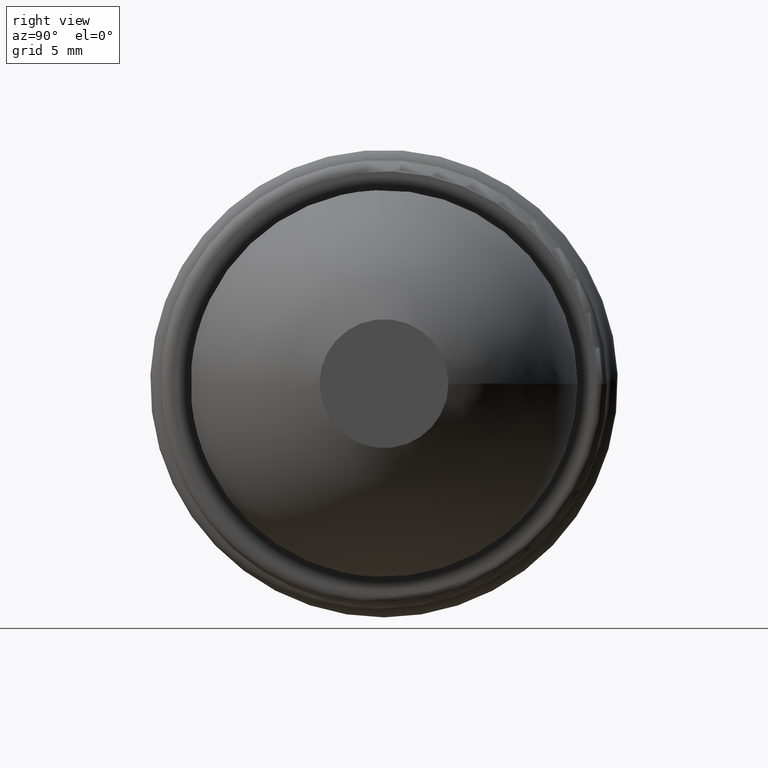
[diagram: clean part render]
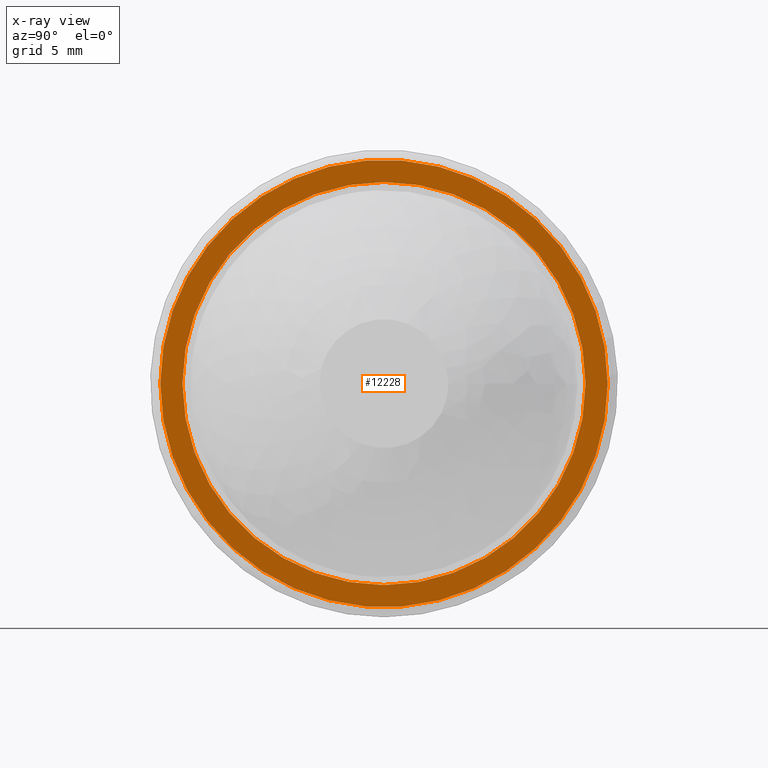
[diagram: x-ray — body ghosted, one internal face saturated and labeled with its STEP entity id]
A machine part, right view, then the same camera in x-ray: the body is ghosted and one INTERNAL B-rep face — a face not visible from any outside direction — is saturated and labeled: STEP entity #12228.
In plain terms, the highlighted planar face has unit normal (-1, 0, 0).
Its self-contained STEP definition (entity closure, byte-faithful):
#12194=CARTESIAN_POINT('',(-20.061170513570097,16.367980793193070,0.0));
#12195=VERTEX_POINT('',#12194);
#12196=CARTESIAN_POINT('',(-20.061170513570097,3.867980793193076,0.0));
#12197=DIRECTION('',(1.0,0.0,0.0));
#12198=DIRECTION('',(0.0,1.0,0.0));
#12199=AXIS2_PLACEMENT_3D('',#12196,#12197,#12198);
#12200=CIRCLE('',#12199,12.499999999999996);
#12201=EDGE_CURVE('',#12195,#12195,#12200,.T.);
#12209=CARTESIAN_POINT('',(-20.061170513570097,17.055480793193073,0.0));
#12210=DIRECTION('',(-1.0,0.0,0.0));
#12211=DIRECTION('',(0.0,0.0,1.0));
#12212=AXIS2_PLACEMENT_3D('',#12209,#12210,#12211);
#12213=PLANE('',#12212);
#12214=CARTESIAN_POINT('',(-20.061170513570104,17.742980793193077,0.0));
#12215=VERTEX_POINT('',#12214);
#12216=CARTESIAN_POINT('',(-20.061170513570104,3.867980793193076,0.0));
#12217=DIRECTION('',(1.0,0.0,0.0));
#12218=DIRECTION('',(0.0,1.0,0.0));
#12219=AXIS2_PLACEMENT_3D('',#12216,#12217,#12218);
#12220=CIRCLE('',#12219,13.875000000000002);
#12221=EDGE_CURVE('',#12215,#12215,#12220,.T.);
#12222=ORIENTED_EDGE('',*,*,#12221,.F.);
#12223=EDGE_LOOP('',(#12222));
#12224=FACE_OUTER_BOUND('',#12223,.T.);
#12225=ORIENTED_EDGE('',*,*,#12201,.T.);
#12226=EDGE_LOOP('',(#12225));
#12227=FACE_BOUND('',#12226,.T.);
#12228=ADVANCED_FACE('',(#12224,#12227),#12213,.T.);